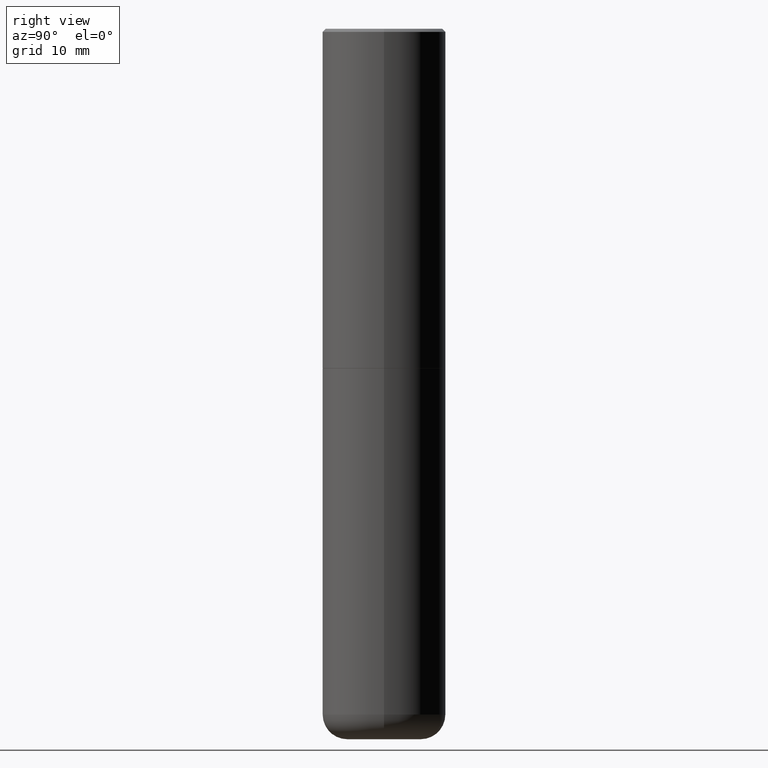
[diagram: clean part render]
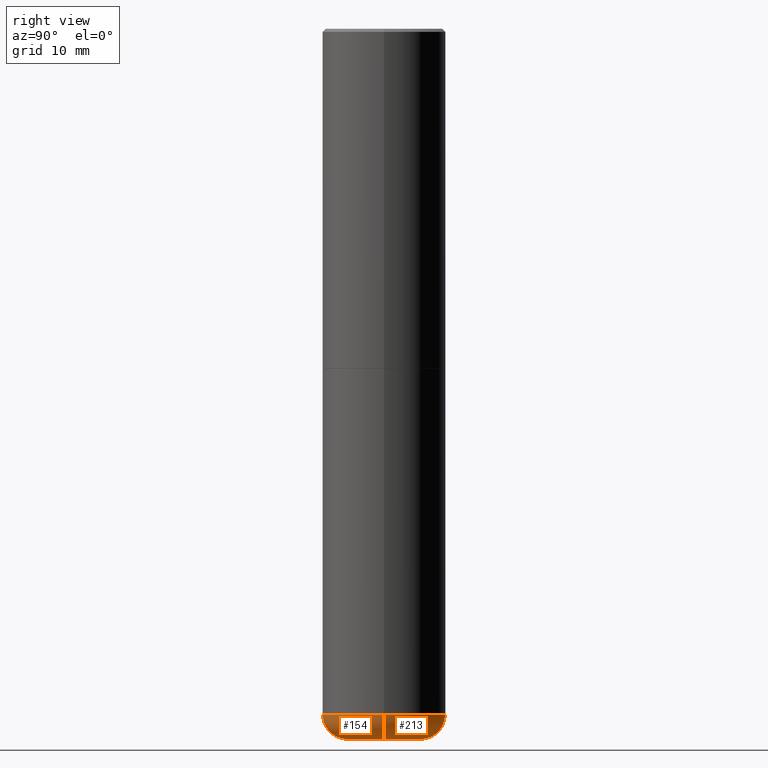
[diagram: same view with one multi-face feature highlighted, each face labeled with its STEP entity id]
A machine part, right view. The highlighted faces form ONE feature: a constant-radius fillet chain: 2 tangent blend faces with common blend radius 4.0005 mm. The faces share edges in the B-rep.
Their STEP definitions:
[1] entity #213 (Torus):
#16 = VERTEX_POINT ( 'NONE', #315 ) ;
#28 = CIRCLE ( 'NONE', #236, 0.1575000000000000566 ) ;
#43 = FACE_OUTER_BOUND ( 'NONE', #196, .T. ) ;
#46 = ORIENTED_EDGE ( 'NONE', *, *, #104, .F. ) ;
#71 = CARTESIAN_POINT ( 'NONE',  ( -0.3937000000000001054, -1.246071584819091497E-14, -4.370099999999998985 ) ) ;
#83 = DIRECTION ( 'NONE',  ( -6.982962677686266711E-15, -1.000000000000000000, 3.491481338843145583E-15 ) ) ;
#84 = VERTEX_POINT ( 'NONE', #71 ) ;
#100 = ORIENTED_EDGE ( 'NONE', *, *, #410, .T. ) ;
#103 = CARTESIAN_POINT ( 'NONE',  ( 1.068694322990966450E-28, -1.525812259887842897E-14, -4.370099999999998985 ) ) ;
#104 = EDGE_CURVE ( 'NONE', #193, #16, #220, .T. ) ;
#106 = CARTESIAN_POINT ( 'NONE',  ( 0.2362000000000000210, -1.690749838334792550E-14, -4.370099999999998985 ) ) ;
#114 = DIRECTION ( 'NONE',  ( 1.000000000000000000, -6.982962677686261977E-15, 0.000000000000000000 ) ) ;
#138 = CARTESIAN_POINT ( 'NONE',  ( -0.2362000000000000210, -1.357982065701307100E-14, -4.370099999999998985 ) ) ;
#158 = AXIS2_PLACEMENT_3D ( 'NONE', #106, #83, #340 ) ;
#162 = ORIENTED_EDGE ( 'NONE', *, *, #387, .F. ) ;
#172 = CARTESIAN_POINT ( 'NONE',  ( 1.068694322990966450E-28, -1.525812259887842897E-14, -4.370099999999998985 ) ) ;
#176 = CARTESIAN_POINT ( 'NONE',  ( -0.2362000000000000766, -1.329522240803589203E-14, -4.527599999999999625 ) ) ;
#185 = CIRCLE ( 'NONE', #385, 0.2362000000000000766 ) ;
#188 = DIRECTION ( 'NONE',  ( -1.000000000000000000, 7.105427357601006592E-15, 0.000000000000000000 ) ) ;
#193 = VERTEX_POINT ( 'NONE', #263 ) ;
#196 = EDGE_LOOP ( 'NONE', ( #310, #100, #162, #46 ) ) ;
#211 = CARTESIAN_POINT ( 'NONE',  ( 1.107210456688382298E-28, -1.580803090974622389E-14, -4.527599999999999625 ) ) ;
#213 = ADVANCED_FACE ( 'NONE', ( #43 ), #278, .T. ) ;
#220 = CIRCLE ( 'NONE', #158, 0.1575000000000000566 ) ;
#229 = DIRECTION ( 'NONE',  ( 1.000000000000000000, -6.982962677686261977E-15, 4.883557194083110659E-29 ) ) ;
#236 = AXIS2_PLACEMENT_3D ( 'NONE', #138, #268, #188 ) ;
#257 = CIRCLE ( 'NONE', #307, 0.3937000000000001054 ) ;
#263 = CARTESIAN_POINT ( 'NONE',  ( 0.2362000000000000766, -1.745740669421572042E-14, -4.527599999999999625 ) ) ;
#268 = DIRECTION ( 'NONE',  ( 7.105427357601001859E-15, 1.000000000000000000, -3.491481338843145583E-15 ) ) ;
#278 = TOROIDAL_SURFACE ( 'NONE', #333, 0.2362000000000000210, 0.1575000000000000844 ) ;
#307 = AXIS2_PLACEMENT_3D ( 'NONE', #172, #403, #114 ) ;
#310 = ORIENTED_EDGE ( 'NONE', *, *, #396, .T. ) ;
#315 = CARTESIAN_POINT ( 'NONE',  ( 0.3937000000000001054, -1.800731500508351219E-14, -4.370099999999998985 ) ) ;
#332 = DIRECTION ( 'NONE',  ( -2.445468806185136597E-29, 3.491481338843145583E-15, 1.000000000000000000 ) ) ;
#333 = AXIS2_PLACEMENT_3D ( 'NONE', #103, #395, #229 ) ;
#340 = DIRECTION ( 'NONE',  ( 1.000000000000000000, -6.982962677686259611E-15, 0.000000000000000000 ) ) ;
#364 = DIRECTION ( 'NONE',  ( 1.000000000000000000, -6.982962677686262766E-15, 0.000000000000000000 ) ) ;
#368 = VERTEX_POINT ( 'NONE', #176 ) ;
#385 = AXIS2_PLACEMENT_3D ( 'NONE', #211, #332, #364 ) ;
#387 = EDGE_CURVE ( 'NONE', #16, #84, #257, .T. ) ;
#395 = DIRECTION ( 'NONE',  ( -2.445468806185136597E-29, 3.491481338843145583E-15, 1.000000000000000000 ) ) ;
#396 = EDGE_CURVE ( 'NONE', #193, #368, #185, .T. ) ;
#403 = DIRECTION ( 'NONE',  ( -2.445468806185136597E-29, 3.491481338843145583E-15, 1.000000000000000000 ) ) ;
#410 = EDGE_CURVE ( 'NONE', #368, #84, #28, .T. ) ;
[2] entity #154 (Torus):
#1 = CIRCLE ( 'NONE', #383, 0.2362000000000000766 ) ;
#13 = CARTESIAN_POINT ( 'NONE',  ( 1.107210456688382298E-28, -1.580803090974622389E-14, -4.527599999999999625 ) ) ;
#16 = VERTEX_POINT ( 'NONE', #315 ) ;
#28 = CIRCLE ( 'NONE', #236, 0.1575000000000000566 ) ;
#31 = DIRECTION ( 'NONE',  ( 1.000000000000000000, -6.982962677686261977E-15, 4.883557194083110659E-29 ) ) ;
#34 = CARTESIAN_POINT ( 'NONE',  ( 1.068694322990966450E-28, -1.525812259887842897E-14, -4.370099999999998985 ) ) ;
#63 = TOROIDAL_SURFACE ( 'NONE', #256, 0.2362000000000000210, 0.1575000000000000844 ) ;
#70 = ORIENTED_EDGE ( 'NONE', *, *, #235, .F. ) ;
#71 = CARTESIAN_POINT ( 'NONE',  ( -0.3937000000000001054, -1.246071584819091497E-14, -4.370099999999998985 ) ) ;
#72 = DIRECTION ( 'NONE',  ( -2.445468806185136597E-29, 3.491481338843145583E-15, 1.000000000000000000 ) ) ;
#80 = ORIENTED_EDGE ( 'NONE', *, *, #223, .T. ) ;
#83 = DIRECTION ( 'NONE',  ( -6.982962677686266711E-15, -1.000000000000000000, 3.491481338843145583E-15 ) ) ;
#84 = VERTEX_POINT ( 'NONE', #71 ) ;
#104 = EDGE_CURVE ( 'NONE', #193, #16, #220, .T. ) ;
#106 = CARTESIAN_POINT ( 'NONE',  ( 0.2362000000000000210, -1.690749838334792550E-14, -4.370099999999998985 ) ) ;
#137 = DIRECTION ( 'NONE',  ( -2.445468806185136597E-29, 3.491481338843145583E-15, 1.000000000000000000 ) ) ;
#138 = CARTESIAN_POINT ( 'NONE',  ( -0.2362000000000000210, -1.357982065701307100E-14, -4.370099999999998985 ) ) ;
#154 = ADVANCED_FACE ( 'NONE', ( #170 ), #63, .T. ) ;
#156 = CARTESIAN_POINT ( 'NONE',  ( 1.068694322990966450E-28, -1.525812259887842897E-14, -4.370099999999998985 ) ) ;
#158 = AXIS2_PLACEMENT_3D ( 'NONE', #106, #83, #340 ) ;
#170 = FACE_OUTER_BOUND ( 'NONE', #230, .T. ) ;
#176 = CARTESIAN_POINT ( 'NONE',  ( -0.2362000000000000766, -1.329522240803589203E-14, -4.527599999999999625 ) ) ;
#184 = ORIENTED_EDGE ( 'NONE', *, *, #104, .T. ) ;
#188 = DIRECTION ( 'NONE',  ( -1.000000000000000000, 7.105427357601006592E-15, 0.000000000000000000 ) ) ;
#193 = VERTEX_POINT ( 'NONE', #263 ) ;
#202 = DIRECTION ( 'NONE',  ( 1.000000000000000000, -6.982962677686261977E-15, 0.000000000000000000 ) ) ;
#220 = CIRCLE ( 'NONE', #158, 0.1575000000000000566 ) ;
#223 = EDGE_CURVE ( 'NONE', #368, #193, #1, .T. ) ;
#230 = EDGE_LOOP ( 'NONE', ( #344, #80, #184, #70 ) ) ;
#235 = EDGE_CURVE ( 'NONE', #84, #16, #314, .T. ) ;
#236 = AXIS2_PLACEMENT_3D ( 'NONE', #138, #268, #188 ) ;
#256 = AXIS2_PLACEMENT_3D ( 'NONE', #156, #285, #31 ) ;
#263 = CARTESIAN_POINT ( 'NONE',  ( 0.2362000000000000766, -1.745740669421572042E-14, -4.527599999999999625 ) ) ;
#268 = DIRECTION ( 'NONE',  ( 7.105427357601001859E-15, 1.000000000000000000, -3.491481338843145583E-15 ) ) ;
#285 = DIRECTION ( 'NONE',  ( -2.445468806185136597E-29, 3.491481338843145583E-15, 1.000000000000000000 ) ) ;
#287 = AXIS2_PLACEMENT_3D ( 'NONE', #34, #72, #202 ) ;
#314 = CIRCLE ( 'NONE', #287, 0.3937000000000001054 ) ;
#315 = CARTESIAN_POINT ( 'NONE',  ( 0.3937000000000001054, -1.800731500508351219E-14, -4.370099999999998985 ) ) ;
#340 = DIRECTION ( 'NONE',  ( 1.000000000000000000, -6.982962677686259611E-15, 0.000000000000000000 ) ) ;
#344 = ORIENTED_EDGE ( 'NONE', *, *, #410, .F. ) ;
#360 = DIRECTION ( 'NONE',  ( 1.000000000000000000, -6.982962677686262766E-15, 0.000000000000000000 ) ) ;
#368 = VERTEX_POINT ( 'NONE', #176 ) ;
#383 = AXIS2_PLACEMENT_3D ( 'NONE', #13, #137, #360 ) ;
#410 = EDGE_CURVE ( 'NONE', #368, #84, #28, .T. ) ;